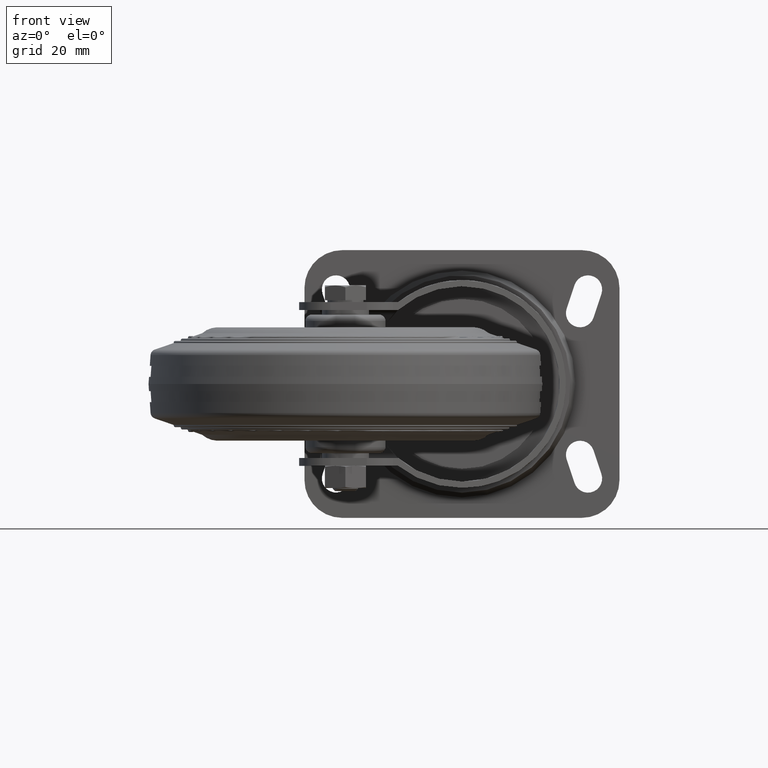
[diagram: clean part render]
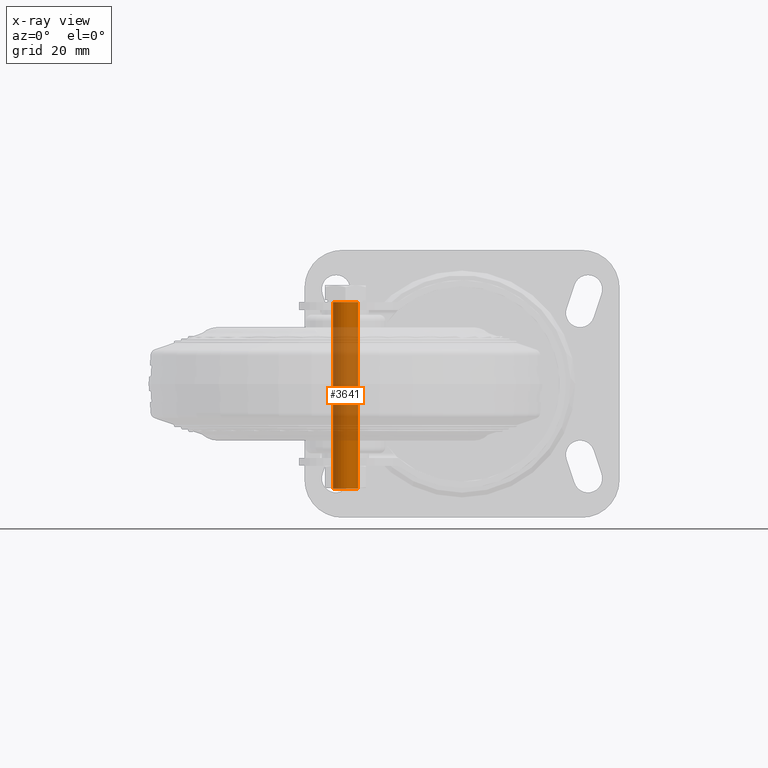
[diagram: x-ray — body ghosted, one internal face saturated and labeled with its STEP entity id]
A machine part, front view, then the same camera in x-ray: the body is ghosted and one INTERNAL B-rep face — a face not visible from any outside direction — is saturated and labeled: STEP entity #3641.
In plain terms, the highlighted cylindrical surface (bore or boss wall) has radius 4 mm, axis along (0, 0, 1).
Its self-contained STEP definition (entity closure, byte-faithful):
#184=CYLINDRICAL_SURFACE('',#4235,4.);
#455=CIRCLE('',#4233,4.);
#456=CIRCLE('',#4234,4.);
#457=CIRCLE('',#4236,4.);
#660=FACE_OUTER_BOUND('',#919,.T.);
#919=EDGE_LOOP('',(#3034,#3035,#3036,#3037,#3038));
#1166=LINE('',#6362,#1389);
#1389=VECTOR('',#5282,4.);
#1679=VERTEX_POINT('',#6354);
#1680=VERTEX_POINT('',#6355);
#1681=VERTEX_POINT('',#6360);
#2135=EDGE_CURVE('',#1679,#1680,#455,.T.);
#2136=EDGE_CURVE('',#1680,#1679,#456,.T.);
#2138=EDGE_CURVE('',#1681,#1681,#457,.T.);
#2139=EDGE_CURVE('',#1681,#1680,#1166,.T.);
#3034=ORIENTED_EDGE('',*,*,#2138,.T.);
#3035=ORIENTED_EDGE('',*,*,#2139,.T.);
#3036=ORIENTED_EDGE('',*,*,#2135,.F.);
#3037=ORIENTED_EDGE('',*,*,#2136,.F.);
#3038=ORIENTED_EDGE('',*,*,#2139,.F.);
#3641=ADVANCED_FACE('',(#660),#184,.T.);
#4233=AXIS2_PLACEMENT_3D('',#6356,#5273,#5274);
#4234=AXIS2_PLACEMENT_3D('',#6357,#5275,#5276);
#4235=AXIS2_PLACEMENT_3D('',#6359,#5278,#5279);
#4236=AXIS2_PLACEMENT_3D('',#6361,#5280,#5281);
#5273=DIRECTION('center_axis',(1.,0.,0.));
#5274=DIRECTION('ref_axis',(0.,0.,-1.));
#5275=DIRECTION('center_axis',(1.,0.,0.));
#5276=DIRECTION('ref_axis',(0.,0.,-1.));
#5278=DIRECTION('center_axis',(-1.,0.,0.));
#5279=DIRECTION('ref_axis',(0.,0.,-1.));
#5280=DIRECTION('center_axis',(1.,0.,0.));
#5281=DIRECTION('ref_axis',(0.,0.,-1.));
#5282=DIRECTION('',(1.,0.,0.));
#6354=CARTESIAN_POINT('',(59.233,0.,-4.));
#6355=CARTESIAN_POINT('',(59.233,4.89858719658941E-16,4.));
#6356=CARTESIAN_POINT('Origin',(59.233,0.,0.));
#6357=CARTESIAN_POINT('Origin',(59.233,0.,0.));
#6359=CARTESIAN_POINT('Origin',(60.,0.,0.));
#6360=CARTESIAN_POINT('',(0.,4.89858719658941E-16,4.));
#6361=CARTESIAN_POINT('Origin',(0.,0.,0.));
#6362=CARTESIAN_POINT('',(60.,4.89858719658941E-16,4.));